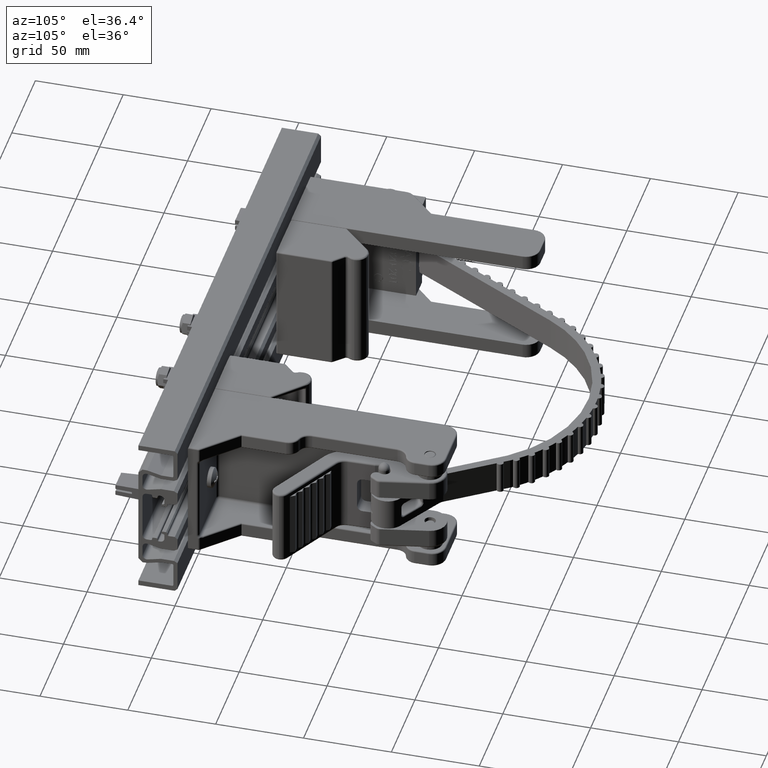
[diagram: clean part render]
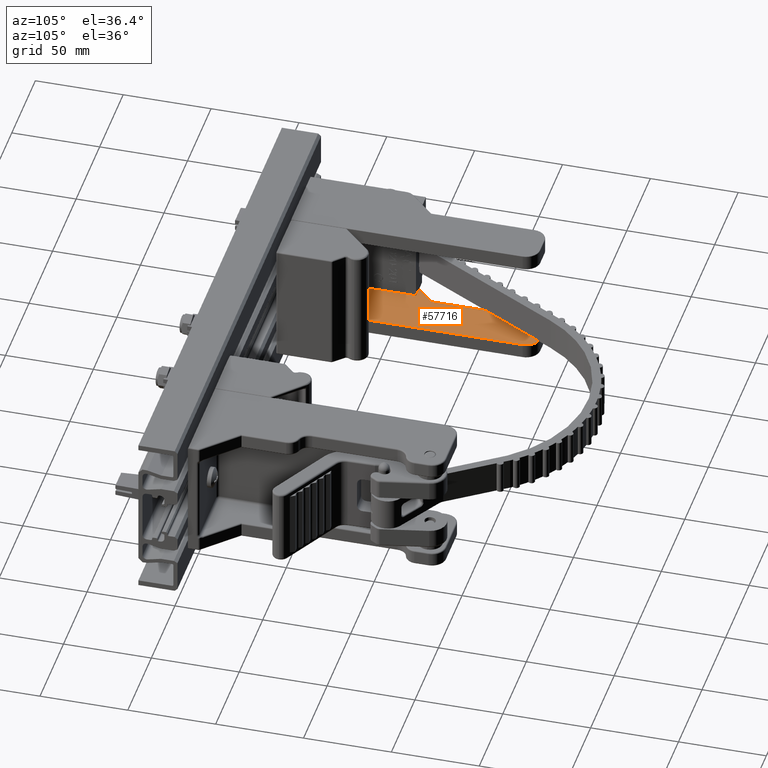
[diagram: same view with one face highlighted and labeled with its STEP entity id]
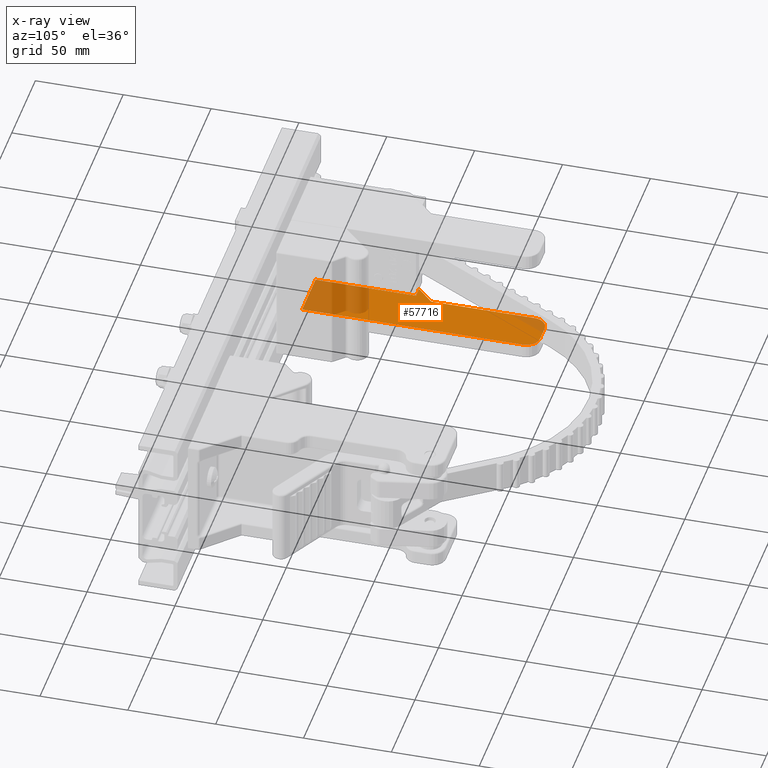
[diagram: x-ray of the same camera — body ghosted, the highlighted face saturated]
A machine part, auxiliary view. The second image highlights one B-rep face of the part: STEP entity #57716.
The next image is the same camera in x-ray: the body ghosted, the highlighted face saturated — about 28% of this face is hidden behind the body in this view.
In plain terms, the highlighted planar face has unit normal (0, -0, -1).
Its self-contained STEP definition (entity closure, byte-faithful):
#4894 = CARTESIAN_POINT ( 'NONE',  ( 0.3749999999999992800, 5.500000000000000000, 1.015999999999999800 ) ) ;
#4895 = DIRECTION ( 'NONE',  ( -1.300879996982982500E-016, 1.000000000000000000, -1.040703997586385900E-016 ) ) ;
#7409 = FACE_OUTER_BOUND ( 'NONE', #34169, .T. ) ;
#22910 = EDGE_CURVE ( 'NONE', #66019, #65936, #33408, .T. ) ;
#22929 = EDGE_CURVE ( 'NONE', #66033, #66031, #33469, .T. ) ;
#22930 = EDGE_CURVE ( 'NONE', #66034, #66031, #33465, .T. ) ;
#22943 = EDGE_CURVE ( 'NONE', #66041, #66039, #33489, .T. ) ;
#22947 = EDGE_CURVE ( 'NONE', #66039, #66043, #33502, .T. ) ;
#22948 = EDGE_CURVE ( 'NONE', #66043, #66033, #33495, .T. ) ;
#22969 = EDGE_CURVE ( 'NONE', #66041, #66019, #33535, .T. ) ;
#22970 = EDGE_CURVE ( 'NONE', #65939, #66034, #33537, .T. ) ;
#31470 = AXIS2_PLACEMENT_3D ( 'NONE', #36558, #36566, #36567 ) ;
#31473 = AXIS2_PLACEMENT_3D ( 'NONE', #36595, #36607, #36608 ) ;
#33408 = LINE ( 'NONE', #36521, #33435 ) ;
#33435 = VECTOR ( 'NONE', #36524, 39.37007874015748100 ) ;
#33465 = LINE ( 'NONE', #36568, #33466 ) ;
#33466 = VECTOR ( 'NONE', #36569, 39.37007874015748100 ) ;
#33469 = CIRCLE ( 'NONE', #31470, 0.3124999999999994400 ) ;
#33489 = LINE ( 'NONE', #36594, #33494 ) ;
#33494 = VECTOR ( 'NONE', #36598, 39.37007874015748100 ) ;
#33495 = LINE ( 'NONE', #36609, #33498 ) ;
#33498 = VECTOR ( 'NONE', #36610, 39.37007874015748100 ) ;
#33502 = CIRCLE ( 'NONE', #31473, 0.3124999999999994400 ) ;
#33535 = LINE ( 'NONE', #36658, #33536 ) ;
#33536 = VECTOR ( 'NONE', #36659, 39.37007874015748100 ) ;
#33537 = LINE ( 'NONE', #36660, #33538 ) ;
#33538 = VECTOR ( 'NONE', #36661, 39.37007874015748100 ) ;
#34169 = EDGE_LOOP ( 'NONE', ( #64988, #64989, #64990, #64991, #64992, #64993, #64994, #64995, #64996 ) ) ;
#36521 = CARTESIAN_POINT ( 'NONE',  ( 0.6249999999999951200, 2.500000000000000000, 1.016000000000000000 ) ) ;
#36524 = DIRECTION ( 'NONE',  ( -1.000000000000000000, 0.0000000000000000000, -1.370142230267347600E-032 ) ) ;
#36558 = CARTESIAN_POINT ( 'NONE',  ( -0.4375000000000007200, 5.187500000000000000, 1.015999999999999800 ) ) ;
#36566 = DIRECTION ( 'NONE',  ( -1.370142230267347600E-032, 1.040703997586386100E-016, 1.000000000000000000 ) ) ;
#36567 = DIRECTION ( 'NONE',  ( 0.0000000000000000000, -1.000000000000000000, 0.0000000000000000000 ) ) ;
#36568 = CARTESIAN_POINT ( 'NONE',  ( -0.7500000000000007800, 5.500000000000000000, 1.015999999999999800 ) ) ;
#36569 = DIRECTION ( 'NONE',  ( -1.300879996982982500E-016, 1.000000000000000000, -1.040703997586385900E-016 ) ) ;
#36594 = CARTESIAN_POINT ( 'NONE',  ( 0.2499999999999992500, 2.500000000000000000, 1.016000000000000000 ) ) ;
#36595 = CARTESIAN_POINT ( 'NONE',  ( -0.06250000000000076300, 5.187500000000000000, 1.015999999999999800 ) ) ;
#36598 = DIRECTION ( 'NONE',  ( 0.0000000000000000000, 1.000000000000000000, -1.040703997586386100E-016 ) ) ;
#36607 = DIRECTION ( 'NONE',  ( -1.370142230267347600E-032, 1.040703997586386100E-016, 1.000000000000000000 ) ) ;
#36608 = DIRECTION ( 'NONE',  ( 0.0000000000000000000, -1.000000000000000000, 0.0000000000000000000 ) ) ;
#36609 = CARTESIAN_POINT ( 'NONE',  ( -0.06250000000000080500, 5.500000000000000000, 1.015999999999999800 ) ) ;
#36610 = DIRECTION ( 'NONE',  ( -1.000000000000000000, 0.0000000000000000000, -1.370142230267347600E-032 ) ) ;
#36658 = CARTESIAN_POINT ( 'NONE',  ( 0.2499999999999991700, 2.875000000000000000, 1.016000000000000000 ) ) ;
#36659 = DIRECTION ( 'NONE',  ( 0.7071067811865439100, -0.7071067811865511300, 7.358888539012859200E-017 ) ) ;
#36660 = CARTESIAN_POINT ( 'NONE',  ( 0.3749999999999999400, 0.2500000000000001100, 1.016000000000000200 ) ) ;
#36661 = DIRECTION ( 'NONE',  ( -1.000000000000000000, -1.316553249958681000E-016, -0.0000000000000000000 ) ) ;
#40773 = EDGE_CURVE ( 'NONE', #65939, #65936, #76937, .T. ) ;
#57716 = ADVANCED_FACE ( 'NONE', ( #7409 ), #64463, .F. ) ;
#64463 = PLANE ( 'NONE',  #74109 ) ;
#64464 = CARTESIAN_POINT ( 'NONE',  ( 0.3749999999999992800, 5.500000000000000000, 1.015999999999999800 ) ) ;
#64469 = DIRECTION ( 'NONE',  ( -1.370142230267347600E-032, 1.040703997586386100E-016, 1.000000000000000000 ) ) ;
#64470 = DIRECTION ( 'NONE',  ( 0.0000000000000000000, -1.000000000000000000, 1.040703997586386100E-016 ) ) ;
#64988 = ORIENTED_EDGE ( 'NONE', *, *, #22943, .F. ) ;
#64989 = ORIENTED_EDGE ( 'NONE', *, *, #22969, .T. ) ;
#64990 = ORIENTED_EDGE ( 'NONE', *, *, #22910, .T. ) ;
#64991 = ORIENTED_EDGE ( 'NONE', *, *, #40773, .F. ) ;
#64992 = ORIENTED_EDGE ( 'NONE', *, *, #22970, .T. ) ;
#64993 = ORIENTED_EDGE ( 'NONE', *, *, #22930, .T. ) ;
#64994 = ORIENTED_EDGE ( 'NONE', *, *, #22929, .F. ) ;
#64995 = ORIENTED_EDGE ( 'NONE', *, *, #22948, .F. ) ;
#64996 = ORIENTED_EDGE ( 'NONE', *, *, #22947, .F. ) ;
#65936 = VERTEX_POINT ( 'NONE', #82673 ) ;
#65939 = VERTEX_POINT ( 'NONE', #82679 ) ;
#66019 = VERTEX_POINT ( 'NONE', #82835 ) ;
#66031 = VERTEX_POINT ( 'NONE', #82856 ) ;
#66033 = VERTEX_POINT ( 'NONE', #82860 ) ;
#66034 = VERTEX_POINT ( 'NONE', #82862 ) ;
#66039 = VERTEX_POINT ( 'NONE', #82871 ) ;
#66041 = VERTEX_POINT ( 'NONE', #82874 ) ;
#66043 = VERTEX_POINT ( 'NONE', #82878 ) ;
#74109 = AXIS2_PLACEMENT_3D ( 'NONE', #64464, #64469, #64470 ) ;
#76937 = LINE ( 'NONE', #4894, #76951 ) ;
#76951 = VECTOR ( 'NONE', #4895, 39.37007874015748100 ) ;
#82673 = CARTESIAN_POINT ( 'NONE',  ( 0.3749999999999996700, 2.500000000000000000, 1.016000000000000000 ) ) ;
#82679 = CARTESIAN_POINT ( 'NONE',  ( 0.3749999999999999400, 0.2500000000000001100, 1.016000000000000200 ) ) ;
#82835 = CARTESIAN_POINT ( 'NONE',  ( 0.6249999999999951200, 2.500000000000000000, 1.016000000000000000 ) ) ;
#82856 = CARTESIAN_POINT ( 'NONE',  ( -0.7500000000000007800, 5.187500000000000000, 1.015999999999999800 ) ) ;
#82860 = CARTESIAN_POINT ( 'NONE',  ( -0.4375000000000007800, 5.500000000000000000, 1.015999999999999800 ) ) ;
#82862 = CARTESIAN_POINT ( 'NONE',  ( -0.7500000000000001100, 0.2500000000000000000, 1.016000000000000200 ) ) ;
#82871 = CARTESIAN_POINT ( 'NONE',  ( 0.2499999999999989700, 5.187500000000000000, 1.015999999999999800 ) ) ;
#82874 = CARTESIAN_POINT ( 'NONE',  ( 0.2499999999999994400, 2.875000000000000400, 1.016000000000000000 ) ) ;
#82878 = CARTESIAN_POINT ( 'NONE',  ( -0.06250000000000076300, 5.500000000000000000, 1.015999999999999800 ) ) ;